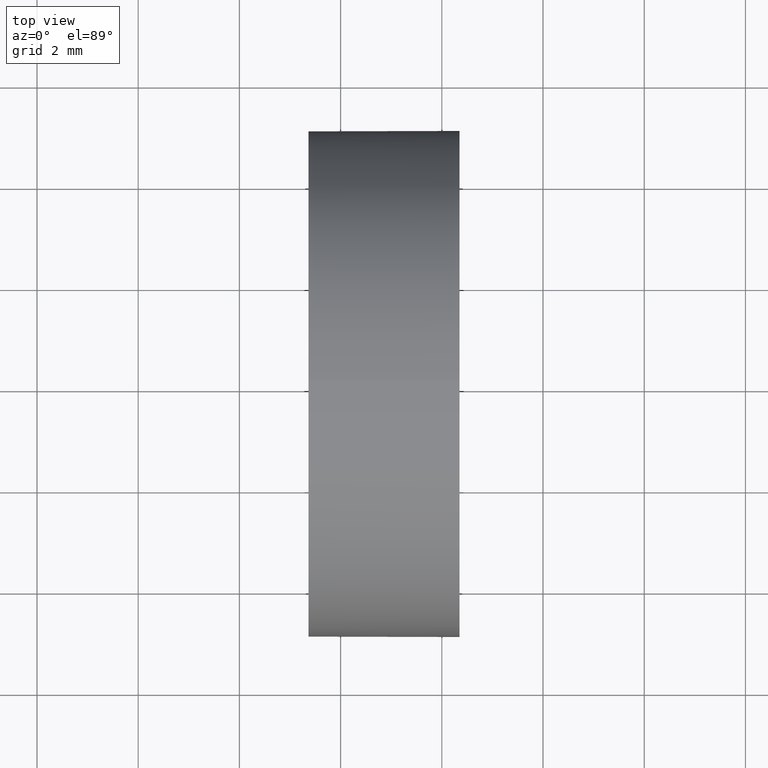
[diagram: clean part render]
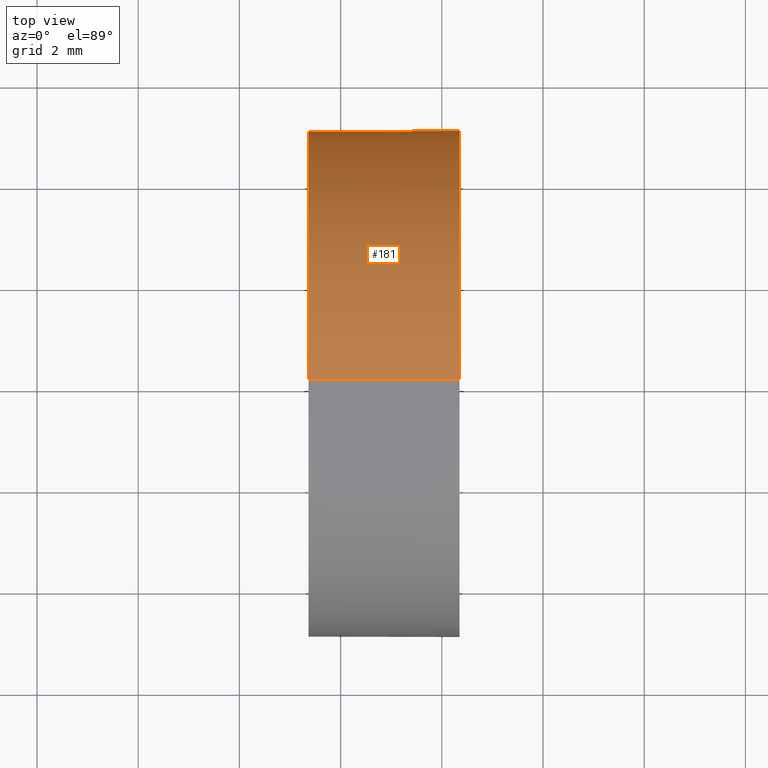
[diagram: same view with one face highlighted and labeled with its STEP entity id]
A machine part, top view. The second image highlights one B-rep face of the part: STEP entity #181.
In plain terms, the highlighted cylindrical surface (partial cylindrical patch) has radius 5 mm, axis along (-1, -0, -0).
Its self-contained STEP definition (entity closure, byte-faithful):
#2 = DIRECTION ( 'NONE',  ( -1.000000000000000000, -0.0000000000000000000, -0.0000000000000000000 ) ) ;
#13 = AXIS2_PLACEMENT_3D ( 'NONE', #151, #124, #107 ) ;
#25 = ORIENTED_EDGE ( 'NONE', *, *, #87, .F. ) ;
#28 = VERTEX_POINT ( 'NONE', #72 ) ;
#35 = VECTOR ( 'NONE', #2, 1000.000000000000000 ) ;
#39 = CARTESIAN_POINT ( 'NONE',  ( 44.34889685878980000, 26.06225218280608000, -4.999999999999993800 ) ) ;
#40 = CARTESIAN_POINT ( 'NONE',  ( 44.34889685878980000, 31.06225218280607300, 6.123233995736756400E-016 ) ) ;
#42 = AXIS2_PLACEMENT_3D ( 'NONE', #169, #148, #106 ) ;
#47 = CARTESIAN_POINT ( 'NONE',  ( 39.73650001336414300, 26.06225218280608000, 0.0000000000000000000 ) ) ;
#51 = AXIS2_PLACEMENT_3D ( 'NONE', #86, #184, #71 ) ;
#55 = CARTESIAN_POINT ( 'NONE',  ( 39.73650001336414300, 26.06225218280608000, 4.999999999999995600 ) ) ;
#66 = EDGE_CURVE ( 'NONE', #97, #108, #180, .T. ) ;
#67 = ORIENTED_EDGE ( 'NONE', *, *, #66, .F. ) ;
#70 = AXIS2_PLACEMENT_3D ( 'NONE', #47, #81, #172 ) ;
#71 = DIRECTION ( 'NONE',  ( 0.0000000000000000000, 0.0000000000000000000, 1.000000000000000000 ) ) ;
#72 = CARTESIAN_POINT ( 'NONE',  ( 44.34889685878980000, 26.06225218280608000, 4.999999999999993800 ) ) ;
#81 = DIRECTION ( 'NONE',  ( -1.000000000000000000, -0.0000000000000000000, -0.0000000000000000000 ) ) ;
#86 = CARTESIAN_POINT ( 'NONE',  ( 41.36582732549757700, 26.06225218280608000, 0.0000000000000000000 ) ) ;
#87 = EDGE_CURVE ( 'NONE', #28, #97, #142, .T. ) ;
#88 = CARTESIAN_POINT ( 'NONE',  ( 41.36582732549757700, 26.06225218280608000, 4.999999999999997300 ) ) ;
#89 = CARTESIAN_POINT ( 'NONE',  ( 39.73650001336414300, 26.06225218280608000, -4.999999999999995600 ) ) ;
#90 = EDGE_LOOP ( 'NONE', ( #173, #177, #67, #25, #170 ) ) ;
#97 = VERTEX_POINT ( 'NONE', #88 ) ;
#100 = VERTEX_POINT ( 'NONE', #40 ) ;
#106 = DIRECTION ( 'NONE',  ( 0.0000000000000000000, 0.0000000000000000000, 1.000000000000000000 ) ) ;
#107 = DIRECTION ( 'NONE',  ( 0.0000000000000000000, 0.0000000000000000000, 1.000000000000000000 ) ) ;
#108 = VERTEX_POINT ( 'NONE', #157 ) ;
#109 = EDGE_CURVE ( 'NONE', #28, #100, #140, .T. ) ;
#112 = CIRCLE ( 'NONE', #13, 4.999999999999993800 ) ;
#115 = LINE ( 'NONE', #89, #35 ) ;
#116 = VERTEX_POINT ( 'NONE', #39 ) ;
#119 = EDGE_CURVE ( 'NONE', #116, #108, #115, .T. ) ;
#124 = DIRECTION ( 'NONE',  ( -1.000000000000000000, -0.0000000000000000000, -0.0000000000000000000 ) ) ;
#140 = CIRCLE ( 'NONE', #42, 4.999999999999993800 ) ;
#142 = LINE ( 'NONE', #55, #147 ) ;
#147 = VECTOR ( 'NONE', #168, 1000.000000000000000 ) ;
#148 = DIRECTION ( 'NONE',  ( -1.000000000000000000, -0.0000000000000000000, -0.0000000000000000000 ) ) ;
#149 = CYLINDRICAL_SURFACE ( 'NONE', #70, 4.999999999999995600 ) ;
#151 = CARTESIAN_POINT ( 'NONE',  ( 44.34889685878980000, 26.06225218280608000, 0.0000000000000000000 ) ) ;
#155 = EDGE_CURVE ( 'NONE', #100, #116, #112, .T. ) ;
#157 = CARTESIAN_POINT ( 'NONE',  ( 41.36582732549757700, 26.06225218280608000, -4.999999999999998200 ) ) ;
#168 = DIRECTION ( 'NONE',  ( -1.000000000000000000, -0.0000000000000000000, -0.0000000000000000000 ) ) ;
#169 = CARTESIAN_POINT ( 'NONE',  ( 44.34889685878980000, 26.06225218280608000, 0.0000000000000000000 ) ) ;
#170 = ORIENTED_EDGE ( 'NONE', *, *, #109, .T. ) ;
#172 = DIRECTION ( 'NONE',  ( 0.0000000000000000000, 0.0000000000000000000, 1.000000000000000000 ) ) ;
#173 = ORIENTED_EDGE ( 'NONE', *, *, #155, .T. ) ;
#177 = ORIENTED_EDGE ( 'NONE', *, *, #119, .T. ) ;
#180 = CIRCLE ( 'NONE', #51, 4.999999999999997300 ) ;
#181 = ADVANCED_FACE ( 'NONE', ( #182 ), #149, .T. ) ;
#182 = FACE_OUTER_BOUND ( 'NONE', #90, .T. ) ;
#184 = DIRECTION ( 'NONE',  ( -1.000000000000000000, -0.0000000000000000000, -0.0000000000000000000 ) ) ;